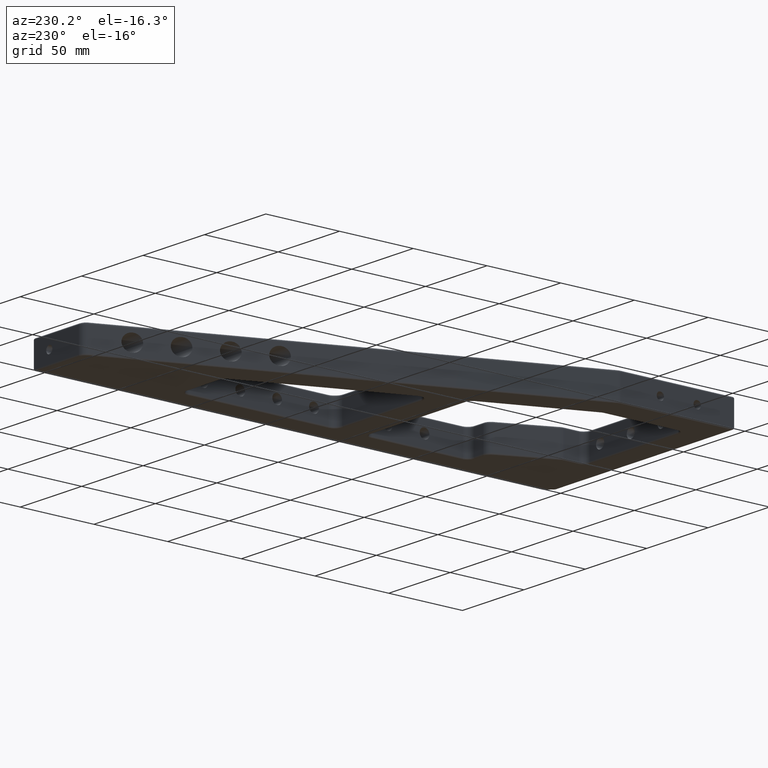
[diagram: clean part render]
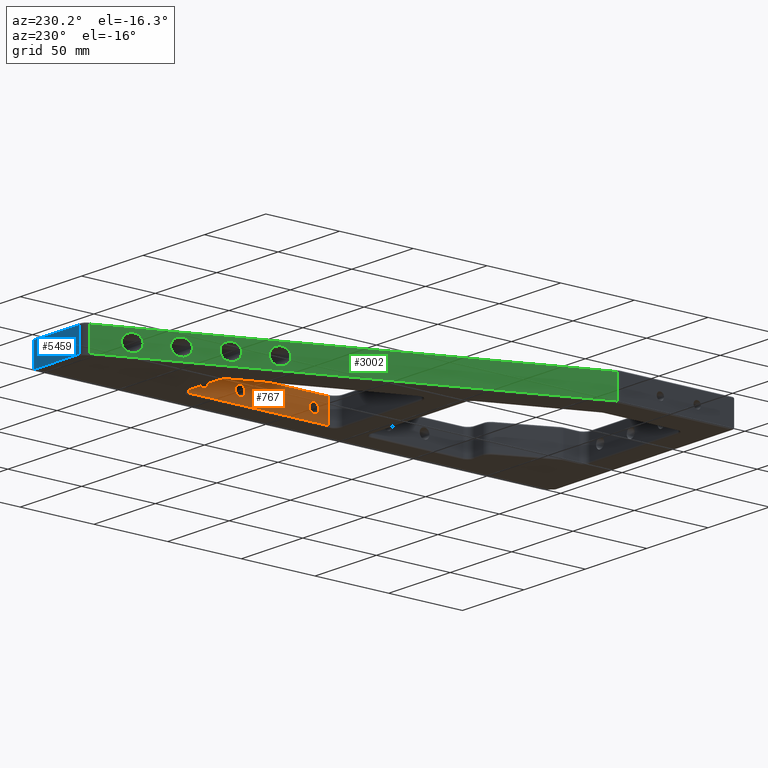
[diagram: same view with three faces highlighted in distinct colors, each labeled with its STEP entity id]
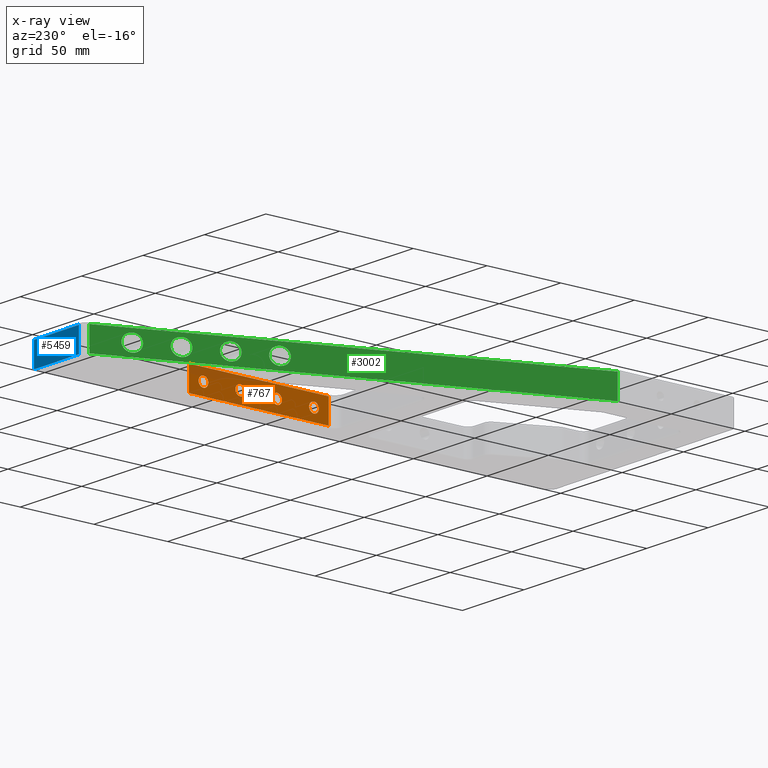
[diagram: x-ray of the same camera — body ghosted, the three highlighted faces saturated]
A machine part, auxiliary view with three faces highlighted in distinct colors.
The next image is the same camera in x-ray (body ghosted, the three faces saturated) — at least one of them is partly hidden behind the body in this view.
Their STEP definitions:

[orange] entity #767 — the highlighted planar face has unit normal (1, 0, 0).
#44 = CIRCLE ( 'NONE', #5566, 3.299999999999997200 ) ;
#69 = EDGE_LOOP ( 'NONE', ( #2251, #3831 ) ) ;
#76 = AXIS2_PLACEMENT_3D ( 'NONE', #1722, #4452, #3989 ) ;
#82 = CARTESIAN_POINT ( 'NONE',  ( 132.0000000000000300, 175.0000000000000000, 8.999999999999976900 ) ) ;
#198 = EDGE_CURVE ( 'NONE', #2735, #634, #1876, .T. ) ;
#224 = LINE ( 'NONE', #5393, #2632 ) ;
#366 = CARTESIAN_POINT ( 'NONE',  ( 132.0000000000000000, 249.9999999999999700, 5.699999999999974400 ) ) ;
#393 = DIRECTION ( 'NONE',  ( 0.0000000000000000000, 1.000000000000000000, 0.0000000000000000000 ) ) ;
#424 = CIRCLE ( 'NONE', #716, 3.299999999999997200 ) ;
#429 = LINE ( 'NONE', #2749, #5150 ) ;
#484 = AXIS2_PLACEMENT_3D ( 'NONE', #4715, #1964, #5164 ) ;
#500 = AXIS2_PLACEMENT_3D ( 'NONE', #4992, #884, #4074 ) ;
#501 = VERTEX_POINT ( 'NONE', #1553 ) ;
#524 = ORIENTED_EDGE ( 'NONE', *, *, #2027, .F. ) ;
#543 = DIRECTION ( 'NONE',  ( 0.0000000000000000000, 1.000000000000000000, 0.0000000000000000000 ) ) ;
#634 = VERTEX_POINT ( 'NONE', #5307 ) ;
#716 = AXIS2_PLACEMENT_3D ( 'NONE', #1559, #4757, #2010 ) ;
#767 = ADVANCED_FACE ( 'NONE', ( #5836, #973, #3379, #4460, #5693 ), #2700, .F. ) ;
#772 = VERTEX_POINT ( 'NONE', #1808 ) ;
#835 = ORIENTED_EDGE ( 'NONE', *, *, #4047, .F. ) ;
#852 = CARTESIAN_POINT ( 'NONE',  ( 132.0000000000000000, 249.9999999999999700, 8.999999999999971600 ) ) ;
#884 = DIRECTION ( 'NONE',  ( 1.000000000000000000, 2.643388153869419300E-016, 0.0000000000000000000 ) ) ;
#919 = EDGE_CURVE ( 'NONE', #501, #4362, #2673, .T. ) ;
#943 = VERTEX_POINT ( 'NONE', #4523 ) ;
#959 = EDGE_CURVE ( 'NONE', #3546, #5161, #1476, .T. ) ;
#973 = FACE_BOUND ( 'NONE', #5211, .T. ) ;
#1017 = VERTEX_POINT ( 'NONE', #5792 ) ;
#1149 = CARTESIAN_POINT ( 'NONE',  ( 132.0000000000000300, 164.9999999999999700, 18.00000000000000000 ) ) ;
#1216 = DIRECTION ( 'NONE',  ( -1.000000000000000000, -2.643388153869419300E-016, -0.0000000000000000000 ) ) ;
#1476 = CIRCLE ( 'NONE', #76, 3.299999999999997200 ) ;
#1506 = CIRCLE ( 'NONE', #3484, 3.299999999999997200 ) ;
#1553 = CARTESIAN_POINT ( 'NONE',  ( 132.0000000000000000, 249.9999999999999700, 12.29999999999996900 ) ) ;
#1559 = CARTESIAN_POINT ( 'NONE',  ( 132.0000000000000300, 199.9999999999999700, 8.999999999999975100 ) ) ;
#1603 = EDGE_CURVE ( 'NONE', #634, #3741, #429, .T. ) ;
#1634 = CARTESIAN_POINT ( 'NONE',  ( 132.0000000000000000, 224.9999999999999700, 12.29999999999997100 ) ) ;
#1642 = EDGE_CURVE ( 'NONE', #4362, #501, #3334, .T. ) ;
#1722 = CARTESIAN_POINT ( 'NONE',  ( 132.0000000000000000, 224.9999999999999700, 8.999999999999973400 ) ) ;
#1739 = DIRECTION ( 'NONE',  ( 2.643388153869419300E-016, -1.000000000000000000, -0.0000000000000000000 ) ) ;
#1765 = DIRECTION ( 'NONE',  ( -1.000000000000000000, -2.643388153869419300E-016, -0.0000000000000000000 ) ) ;
#1808 = CARTESIAN_POINT ( 'NONE',  ( 132.0000000000000300, 199.9999999999999700, 12.29999999999997200 ) ) ;
#1876 = LINE ( 'NONE', #1149, #5098 ) ;
#1964 = DIRECTION ( 'NONE',  ( -1.000000000000000000, -2.643388153869419300E-016, -0.0000000000000000000 ) ) ;
#2010 = DIRECTION ( 'NONE',  ( 0.0000000000000000000, 1.000000000000000000, 0.0000000000000000000 ) ) ;
#2027 = EDGE_CURVE ( 'NONE', #1017, #772, #424, .T. ) ;
#2184 = CIRCLE ( 'NONE', #3130, 3.299999999999997200 ) ;
#2251 = ORIENTED_EDGE ( 'NONE', *, *, #919, .F. ) ;
#2327 = DIRECTION ( 'NONE',  ( -1.000000000000000000, -2.643388153869419300E-016, -0.0000000000000000000 ) ) ;
#2360 = DIRECTION ( 'NONE',  ( 0.0000000000000000000, -0.0000000000000000000, -1.000000000000000000 ) ) ;
#2481 = CARTESIAN_POINT ( 'NONE',  ( 132.0000000000000000, 260.0000000000000000, 1.000000000000000000 ) ) ;
#2486 = EDGE_LOOP ( 'NONE', ( #835, #524 ) ) ;
#2632 = VECTOR ( 'NONE', #1739, 1000.000000000000000 ) ;
#2637 = CIRCLE ( 'NONE', #484, 3.299999999999997200 ) ;
#2639 = EDGE_CURVE ( 'NONE', #943, #5778, #2184, .T. ) ;
#2673 = CIRCLE ( 'NONE', #4784, 3.299999999999997200 ) ;
#2700 = PLANE ( 'NONE',  #500 ) ;
#2718 = CARTESIAN_POINT ( 'NONE',  ( 132.0000000000000000, 260.0000000000000000, 16.99999999999999600 ) ) ;
#2728 = ORIENTED_EDGE ( 'NONE', *, *, #2639, .F. ) ;
#2735 = VERTEX_POINT ( 'NONE', #3782 ) ;
#2749 = CARTESIAN_POINT ( 'NONE',  ( 132.0000000000000000, 260.0000000000000000, 16.99999999999999600 ) ) ;
#2755 = ORIENTED_EDGE ( 'NONE', *, *, #959, .F. ) ;
#2811 = CARTESIAN_POINT ( 'NONE',  ( 132.0000000000000000, 260.0000000000000000, 0.0000000000000000000 ) ) ;
#2885 = VECTOR ( 'NONE', #2360, 1000.000000000000000 ) ;
#2930 = EDGE_CURVE ( 'NONE', #5161, #3546, #44, .T. ) ;
#2933 = ORIENTED_EDGE ( 'NONE', *, *, #4868, .F. ) ;
#3032 = EDGE_LOOP ( 'NONE', ( #4642, #2755 ) ) ;
#3130 = AXIS2_PLACEMENT_3D ( 'NONE', #82, #3260, #543 ) ;
#3260 = DIRECTION ( 'NONE',  ( -1.000000000000000000, -2.643388153869419300E-016, -0.0000000000000000000 ) ) ;
#3273 = CARTESIAN_POINT ( 'NONE',  ( 132.0000000000000000, 224.9999999999999700, 5.699999999999976200 ) ) ;
#3276 = EDGE_CURVE ( 'NONE', #3741, #5111, #5474, .T. ) ;
#3286 = ORIENTED_EDGE ( 'NONE', *, *, #4384, .T. ) ;
#3334 = CIRCLE ( 'NONE', #4942, 3.299999999999997200 ) ;
#3379 = FACE_OUTER_BOUND ( 'NONE', #4851, .T. ) ;
#3484 = AXIS2_PLACEMENT_3D ( 'NONE', #5088, #2327, #5538 ) ;
#3546 = VERTEX_POINT ( 'NONE', #3273 ) ;
#3566 = DIRECTION ( 'NONE',  ( -1.000000000000000000, -2.643388153869419300E-016, -0.0000000000000000000 ) ) ;
#3741 = VERTEX_POINT ( 'NONE', #2718 ) ;
#3782 = CARTESIAN_POINT ( 'NONE',  ( 132.0000000000000300, 164.9999999999999700, 1.000000000000000900 ) ) ;
#3831 = ORIENTED_EDGE ( 'NONE', *, *, #1642, .F. ) ;
#3929 = CARTESIAN_POINT ( 'NONE',  ( 132.0000000000000000, 224.9999999999999700, 8.999999999999973400 ) ) ;
#3989 = DIRECTION ( 'NONE',  ( 0.0000000000000000000, 1.000000000000000000, 0.0000000000000000000 ) ) ;
#4047 = EDGE_CURVE ( 'NONE', #772, #1017, #2637, .T. ) ;
#4073 = DIRECTION ( 'NONE',  ( -2.643388153869419300E-016, 1.000000000000000000, -0.0000000000000000000 ) ) ;
#4074 = DIRECTION ( 'NONE',  ( -2.643388153869419300E-016, 1.000000000000000000, 0.0000000000000000000 ) ) ;
#4362 = VERTEX_POINT ( 'NONE', #366 ) ;
#4384 = EDGE_CURVE ( 'NONE', #5111, #2735, #224, .T. ) ;
#4394 = DIRECTION ( 'NONE',  ( 0.0000000000000000000, 1.000000000000000000, 0.0000000000000000000 ) ) ;
#4452 = DIRECTION ( 'NONE',  ( -1.000000000000000000, -2.643388153869419300E-016, -0.0000000000000000000 ) ) ;
#4460 = FACE_BOUND ( 'NONE', #2486, .T. ) ;
#4523 = CARTESIAN_POINT ( 'NONE',  ( 132.0000000000000300, 175.0000000000000000, 5.699999999999979700 ) ) ;
#4642 = ORIENTED_EDGE ( 'NONE', *, *, #2930, .F. ) ;
#4671 = CARTESIAN_POINT ( 'NONE',  ( 132.0000000000000300, 175.0000000000000000, 12.29999999999997400 ) ) ;
#4715 = CARTESIAN_POINT ( 'NONE',  ( 132.0000000000000300, 199.9999999999999700, 8.999999999999975100 ) ) ;
#4757 = DIRECTION ( 'NONE',  ( -1.000000000000000000, -2.643388153869419300E-016, -0.0000000000000000000 ) ) ;
#4784 = AXIS2_PLACEMENT_3D ( 'NONE', #852, #3566, #393 ) ;
#4851 = EDGE_LOOP ( 'NONE', ( #5816, #3286, #5065, #5177 ) ) ;
#4868 = EDGE_CURVE ( 'NONE', #5778, #943, #1506, .T. ) ;
#4942 = AXIS2_PLACEMENT_3D ( 'NONE', #4969, #1765, #5425 ) ;
#4969 = CARTESIAN_POINT ( 'NONE',  ( 132.0000000000000000, 249.9999999999999700, 8.999999999999971600 ) ) ;
#4992 = CARTESIAN_POINT ( 'NONE',  ( 132.0000000000000000, 265.0000000000000000, 0.0000000000000000000 ) ) ;
#5065 = ORIENTED_EDGE ( 'NONE', *, *, #198, .T. ) ;
#5088 = CARTESIAN_POINT ( 'NONE',  ( 132.0000000000000300, 175.0000000000000000, 8.999999999999976900 ) ) ;
#5098 = VECTOR ( 'NONE', #5264, 1000.000000000000000 ) ;
#5111 = VERTEX_POINT ( 'NONE', #2481 ) ;
#5150 = VECTOR ( 'NONE', #4073, 1000.000000000000000 ) ;
#5161 = VERTEX_POINT ( 'NONE', #1634 ) ;
#5164 = DIRECTION ( 'NONE',  ( 0.0000000000000000000, 1.000000000000000000, 0.0000000000000000000 ) ) ;
#5177 = ORIENTED_EDGE ( 'NONE', *, *, #1603, .T. ) ;
#5211 = EDGE_LOOP ( 'NONE', ( #2933, #2728 ) ) ;
#5264 = DIRECTION ( 'NONE',  ( -0.0000000000000000000, 0.0000000000000000000, 1.000000000000000000 ) ) ;
#5307 = CARTESIAN_POINT ( 'NONE',  ( 132.0000000000000300, 164.9999999999999700, 16.99999999999999600 ) ) ;
#5393 = CARTESIAN_POINT ( 'NONE',  ( 132.0000000000000000, 265.0000000000000000, 1.000000000000000000 ) ) ;
#5425 = DIRECTION ( 'NONE',  ( 0.0000000000000000000, 1.000000000000000000, 0.0000000000000000000 ) ) ;
#5474 = LINE ( 'NONE', #2811, #2885 ) ;
#5538 = DIRECTION ( 'NONE',  ( 0.0000000000000000000, 1.000000000000000000, 0.0000000000000000000 ) ) ;
#5566 = AXIS2_PLACEMENT_3D ( 'NONE', #3929, #1216, #4394 ) ;
#5693 = FACE_BOUND ( 'NONE', #69, .T. ) ;
#5778 = VERTEX_POINT ( 'NONE', #4671 ) ;
#5792 = CARTESIAN_POINT ( 'NONE',  ( 132.0000000000000300, 199.9999999999999700, 5.699999999999978000 ) ) ;
#5816 = ORIENTED_EDGE ( 'NONE', *, *, #3276, .T. ) ;
#5836 = FACE_BOUND ( 'NONE', #3032, .T. ) ;

[blue] entity #5459 — the highlighted planar face has unit normal (0, -1, 0).
#98 = AXIS2_PLACEMENT_3D ( 'NONE', #178, #3349, #632 ) ;
#117 = DIRECTION ( 'NONE',  ( 0.0000000000000000000, 0.0000000000000000000, 1.000000000000000000 ) ) ;
#178 = CARTESIAN_POINT ( 'NONE',  ( 137.4999999999999700, 350.0000000000000000, 8.999999999999996400 ) ) ;
#446 = EDGE_CURVE ( 'NONE', #945, #4003, #976, .T. ) ;
#452 = ORIENTED_EDGE ( 'NONE', *, *, #1429, .T. ) ;
#491 = ORIENTED_EDGE ( 'NONE', *, *, #4439, .T. ) ;
#502 = CARTESIAN_POINT ( 'NONE',  ( 150.0000000000000000, 350.0000000000000000, 16.99999999999999600 ) ) ;
#621 = CIRCLE ( 'NONE', #3543, 2.500000000000002200 ) ;
#632 = DIRECTION ( 'NONE',  ( 0.0000000000000000000, 0.0000000000000000000, 1.000000000000000000 ) ) ;
#881 = DIRECTION ( 'NONE',  ( -1.000000000000000000, 0.0000000000000000000, 0.0000000000000000000 ) ) ;
#945 = VERTEX_POINT ( 'NONE', #3094 ) ;
#976 = LINE ( 'NONE', #502, #5556 ) ;
#1235 = CARTESIAN_POINT ( 'NONE',  ( 150.0000000000000000, 350.0000000000000000, 18.00000000000000000 ) ) ;
#1429 = EDGE_CURVE ( 'NONE', #4003, #1995, #2393, .T. ) ;
#1455 = ORIENTED_EDGE ( 'NONE', *, *, #5256, .T. ) ;
#1562 = ORIENTED_EDGE ( 'NONE', *, *, #2524, .F. ) ;
#1617 = FACE_BOUND ( 'NONE', #1951, .T. ) ;
#1686 = DIRECTION ( 'NONE',  ( 0.0000000000000000000, -1.000000000000000000, 0.0000000000000000000 ) ) ;
#1743 = CARTESIAN_POINT ( 'NONE',  ( 150.0000000000000000, 350.0000000000000000, 18.00000000000000000 ) ) ;
#1792 = CARTESIAN_POINT ( 'NONE',  ( 137.4999999999999700, 350.0000000000000000, 6.499999999999993800 ) ) ;
#1854 = CARTESIAN_POINT ( 'NONE',  ( 150.0000000000000000, 350.0000000000000000, 1.000000000000000900 ) ) ;
#1951 = EDGE_LOOP ( 'NONE', ( #3571, #1562 ) ) ;
#1991 = DIRECTION ( 'NONE',  ( 1.000000000000000000, -0.0000000000000000000, -0.0000000000000000000 ) ) ;
#1995 = VERTEX_POINT ( 'NONE', #1854 ) ;
#2305 = VERTEX_POINT ( 'NONE', #4503 ) ;
#2393 = LINE ( 'NONE', #1743, #4689 ) ;
#2524 = EDGE_CURVE ( 'NONE', #5635, #4010, #621, .T. ) ;
#2579 = PLANE ( 'NONE',  #3341 ) ;
#2821 = FACE_OUTER_BOUND ( 'NONE', #3458, .T. ) ;
#2837 = DIRECTION ( 'NONE',  ( -0.0000000000000000000, 1.000000000000000000, -0.0000000000000000000 ) ) ;
#3075 = DIRECTION ( 'NONE',  ( -0.0000000000000000000, -0.0000000000000000000, 1.000000000000000000 ) ) ;
#3094 = CARTESIAN_POINT ( 'NONE',  ( 113.3725425842121100, 350.0000000000000000, 16.99999999999999600 ) ) ;
#3254 = VECTOR ( 'NONE', #3075, 1000.000000000000000 ) ;
#3341 = AXIS2_PLACEMENT_3D ( 'NONE', #1235, #1686, #4898 ) ;
#3349 = DIRECTION ( 'NONE',  ( -0.0000000000000000000, 1.000000000000000000, -0.0000000000000000000 ) ) ;
#3421 = VECTOR ( 'NONE', #881, 1000.000000000000000 ) ;
#3458 = EDGE_LOOP ( 'NONE', ( #452, #491, #1455, #4315 ) ) ;
#3523 = CARTESIAN_POINT ( 'NONE',  ( 113.3725425842121100, 350.0000000000000000, 18.00000000000000000 ) ) ;
#3543 = AXIS2_PLACEMENT_3D ( 'NONE', #5586, #2837, #117 ) ;
#3571 = ORIENTED_EDGE ( 'NONE', *, *, #3634, .F. ) ;
#3603 = CARTESIAN_POINT ( 'NONE',  ( 150.0000000000000000, 350.0000000000000000, 1.000000000000000900 ) ) ;
#3634 = EDGE_CURVE ( 'NONE', #4010, #5635, #5824, .T. ) ;
#4003 = VERTEX_POINT ( 'NONE', #4654 ) ;
#4008 = DIRECTION ( 'NONE',  ( -0.0000000000000000000, -0.0000000000000000000, -1.000000000000000000 ) ) ;
#4010 = VERTEX_POINT ( 'NONE', #4199 ) ;
#4199 = CARTESIAN_POINT ( 'NONE',  ( 137.4999999999999700, 350.0000000000000000, 11.49999999999999800 ) ) ;
#4315 = ORIENTED_EDGE ( 'NONE', *, *, #446, .T. ) ;
#4439 = EDGE_CURVE ( 'NONE', #1995, #2305, #5874, .T. ) ;
#4475 = LINE ( 'NONE', #3523, #3254 ) ;
#4503 = CARTESIAN_POINT ( 'NONE',  ( 113.3725425842121100, 350.0000000000000000, 1.000000000000000900 ) ) ;
#4654 = CARTESIAN_POINT ( 'NONE',  ( 150.0000000000000000, 350.0000000000000000, 16.99999999999999600 ) ) ;
#4689 = VECTOR ( 'NONE', #4008, 1000.000000000000000 ) ;
#4898 = DIRECTION ( 'NONE',  ( 0.0000000000000000000, -0.0000000000000000000, -1.000000000000000000 ) ) ;
#5256 = EDGE_CURVE ( 'NONE', #2305, #945, #4475, .T. ) ;
#5459 = ADVANCED_FACE ( 'NONE', ( #1617, #2821 ), #2579, .F. ) ;
#5556 = VECTOR ( 'NONE', #1991, 1000.000000000000000 ) ;
#5586 = CARTESIAN_POINT ( 'NONE',  ( 137.4999999999999700, 350.0000000000000000, 8.999999999999996400 ) ) ;
#5635 = VERTEX_POINT ( 'NONE', #1792 ) ;
#5824 = CIRCLE ( 'NONE', #98, 2.500000000000002200 ) ;
#5874 = LINE ( 'NONE', #3603, #3421 ) ;

[green] entity #3002 — the highlighted planar face has unit normal (0.9272, -0.3746, 0).
#18 = CARTESIAN_POINT ( 'NONE',  ( 81.92017730445680000, 280.4999999999999400, 8.999999999999966200 ) ) ;
#75 = LINE ( 'NONE', #3599, #1142 ) ;
#110 =( BOUNDED_CURVE ( )  B_SPLINE_CURVE ( 3, ( #476, #1374, #2287, #3651 ),
 .UNSPECIFIED., .F., .F. ) 
 B_SPLINE_CURVE_WITH_KNOTS ( ( 4, 4 ),
 ( 3.141592653589793100, 6.283185307179586200 ),
 .UNSPECIFIED. ) 
 CURVE ( )  GEOMETRIC_REPRESENTATION_ITEM ( )  RATIONAL_B_SPLINE_CURVE ( ( 1.000000000000000000, 0.3333333333333333700, 0.3333333333333333700, 1.000000000000000000 ) ) 
 REPRESENTATION_ITEM ( '' )  );
#177 = EDGE_LOOP ( 'NONE', ( #2867, #376 ) ) ;
#211 = ORIENTED_EDGE ( 'NONE', *, *, #537, .T. ) ;
#313 = VERTEX_POINT ( 'NONE', #18 ) ;
#323 = EDGE_CURVE ( 'NONE', #5859, #1619, #3900, .T. ) ;
#376 = ORIENTED_EDGE ( 'NONE', *, *, #2872, .T. ) ;
#427 = DIRECTION ( 'NONE',  ( 0.3746065934159093500, 0.9271838545667884200, -0.0000000000000000000 ) ) ;
#476 = CARTESIAN_POINT ( 'NONE',  ( 67.37523317439128300, 244.4999999999999700, 8.999999999999971600 ) ) ;
#537 = EDGE_CURVE ( 'NONE', #2713, #2861, #4037, .T. ) ;
#550 =( BOUNDED_CURVE ( )  B_SPLINE_CURVE ( 3, ( #2730, #4581, #4989, #3327 ),
 .UNSPECIFIED., .F., .F. ) 
 B_SPLINE_CURVE_WITH_KNOTS ( ( 4, 4 ),
 ( 0.0000000000000000000, 3.141592653589793100 ),
 .UNSPECIFIED. ) 
 CURVE ( )  GEOMETRIC_REPRESENTATION_ITEM ( )  RATIONAL_B_SPLINE_CURVE ( ( 1.000000000000000000, 0.3333333333333333700, 0.3333333333333333700, 1.000000000000000000 ) ) 
 REPRESENTATION_ITEM ( '' )  );
#701 = EDGE_LOOP ( 'NONE', ( #1208, #3771 ) ) ;
#709 = CARTESIAN_POINT ( 'NONE',  ( 97.67720011202781900, 319.4999999999999400, 8.999999999999962700 ) ) ;
#742 = CARTESIAN_POINT ( 'NONE',  ( 87.57654446614897400, 294.4999999999999400, -2.000000000000036400 ) ) ;
#808 = EDGE_CURVE ( 'NONE', #5343, #3087, #110, .T. ) ;
#814 = EDGE_CURVE ( 'NONE', #313, #5565, #1166, .T. ) ;
#902 = VERTEX_POINT ( 'NONE', #1790 ) ;
#1112 = FACE_BOUND ( 'NONE', #4669, .T. ) ;
#1142 = VECTOR ( 'NONE', #427, 1000.000000000000100 ) ;
#1166 =( BOUNDED_CURVE ( )  B_SPLINE_CURVE ( 3, ( #1852, #5035, #5507, #2751 ),
 .UNSPECIFIED., .F., .F. ) 
 B_SPLINE_CURVE_WITH_KNOTS ( ( 4, 4 ),
 ( 0.0000000000000000000, 3.141592653589793100 ),
 .UNSPECIFIED. ) 
 CURVE ( )  GEOMETRIC_REPRESENTATION_ITEM ( )  RATIONAL_B_SPLINE_CURVE ( ( 1.000000000000000000, 0.3333333333333333700, 0.3333333333333333700, 1.000000000000000000 ) ) 
 REPRESENTATION_ITEM ( '' )  );
#1167 = CARTESIAN_POINT ( 'NONE',  ( 0.3640807271660384500, 78.64157754559613500, 16.99999999999999600 ) ) ;
#1178 = CARTESIAN_POINT ( 'NONE',  ( 97.67720011202781900, 319.4999999999999400, -2.000000000000040000 ) ) ;
#1208 = ORIENTED_EDGE ( 'NONE', *, *, #323, .T. ) ;
#1240 = ORIENTED_EDGE ( 'NONE', *, *, #1329, .T. ) ;
#1279 = CARTESIAN_POINT ( 'NONE',  ( 0.3640807271660384500, 78.64157754559613500, 18.00000000000000000 ) ) ;
#1329 = EDGE_CURVE ( 'NONE', #3087, #5343, #550, .T. ) ;
#1374 = CARTESIAN_POINT ( 'NONE',  ( 67.37523317439128300, 244.5000000000000300, -2.000000000000047100 ) ) ;
#1416 = CARTESIAN_POINT ( 'NONE',  ( 102.1214885962145200, 330.4999999999999400, 8.999999999999962700 ) ) ;
#1619 = VERTEX_POINT ( 'NONE', #4117 ) ;
#1671 = CARTESIAN_POINT ( 'NONE',  ( 87.57654446614897400, 294.4999999999999400, 8.999999999999962700 ) ) ;
#1716 = EDGE_CURVE ( 'NONE', #5565, #313, #4162, .T. ) ;
#1726 = DIRECTION ( 'NONE',  ( -0.0000000000000000000, -0.0000000000000000000, 1.000000000000000000 ) ) ;
#1790 = CARTESIAN_POINT ( 'NONE',  ( 0.3640807271660384500, 78.64157754559613500, 1.000000000000000900 ) ) ;
#1852 = CARTESIAN_POINT ( 'NONE',  ( 81.92017730445680000, 280.4999999999999400, 8.999999999999966200 ) ) ;
#1882 = EDGE_LOOP ( 'NONE', ( #211, #3796, #5069, #2504 ) ) ;
#1949 = EDGE_CURVE ( 'NONE', #2861, #902, #3122, .T. ) ;
#2040 = CARTESIAN_POINT ( 'NONE',  ( 108.7366233113781800, 346.8730329670795000, 18.00000000000000000 ) ) ;
#2083 = CARTESIAN_POINT ( 'NONE',  ( 102.1214885962145200, 330.4999999999999400, 8.999999999999962700 ) ) ;
#2165 = CARTESIAN_POINT ( 'NONE',  ( 77.47588882027011400, 269.4999999999998900, 8.999999999999966200 ) ) ;
#2182 = DIRECTION ( 'NONE',  ( 0.9271838545667885300, -0.3746065934159094100, 0.0000000000000000000 ) ) ;
#2236 = CARTESIAN_POINT ( 'NONE',  ( 87.57654446614897400, 294.4999999999999400, 19.99999999999996100 ) ) ;
#2272 = ORIENTED_EDGE ( 'NONE', *, *, #1716, .T. ) ;
#2287 = CARTESIAN_POINT ( 'NONE',  ( 71.81952165857799700, 255.5000000000000000, -2.000000000000047100 ) ) ;
#2429 = EDGE_CURVE ( 'NONE', #5171, #5894, #2471, .T. ) ;
#2471 =( BOUNDED_CURVE ( )  B_SPLINE_CURVE ( 3, ( #1416, #4144, #3676, #4612 ),
 .UNSPECIFIED., .F., .F. ) 
 B_SPLINE_CURVE_WITH_KNOTS ( ( 4, 4 ),
 ( 0.0000000000000000000, 3.141592653589793100 ),
 .UNSPECIFIED. ) 
 CURVE ( )  GEOMETRIC_REPRESENTATION_ITEM ( )  RATIONAL_B_SPLINE_CURVE ( ( 1.000000000000000000, 0.3333333333333333700, 0.3333333333333333700, 1.000000000000000000 ) ) 
 REPRESENTATION_ITEM ( '' )  );
#2498 = DIRECTION ( 'NONE',  ( 0.0000000000000000000, 0.0000000000000000000, -1.000000000000000000 ) ) ;
#2504 = ORIENTED_EDGE ( 'NONE', *, *, #4789, .T. ) ;
#2516 = CARTESIAN_POINT ( 'NONE',  ( 77.47588882027011400, 269.4999999999998900, -2.000000000000036400 ) ) ;
#2610 = CARTESIAN_POINT ( 'NONE',  ( 109.9999999999999900, 350.0000000000000000, 1.000000000000000900 ) ) ;
#2629 = ORIENTED_EDGE ( 'NONE', *, *, #814, .T. ) ;
#2713 = VERTEX_POINT ( 'NONE', #2841 ) ;
#2730 = CARTESIAN_POINT ( 'NONE',  ( 71.81952165857798300, 255.4999999999999400, 8.999999999999971600 ) ) ;
#2751 = CARTESIAN_POINT ( 'NONE',  ( 77.47588882027011400, 269.4999999999998900, 8.999999999999966200 ) ) ;
#2820 = VECTOR ( 'NONE', #2498, 1000.000000000000000 ) ;
#2841 = CARTESIAN_POINT ( 'NONE',  ( 108.7366233113781800, 346.8730329670795000, 16.99999999999999600 ) ) ;
#2861 = VERTEX_POINT ( 'NONE', #5726 ) ;
#2867 = ORIENTED_EDGE ( 'NONE', *, *, #2429, .T. ) ;
#2872 = EDGE_CURVE ( 'NONE', #5894, #5171, #5676, .T. ) ;
#2975 = CARTESIAN_POINT ( 'NONE',  ( 81.92017730445680000, 280.4999999999999400, 8.999999999999966200 ) ) ;
#2982 = AXIS2_PLACEMENT_3D ( 'NONE', #3990, #2182, #5385 ) ;
#3002 = ADVANCED_FACE ( 'NONE', ( #4182, #4323, #1112, #5550, #3242 ), #4936, .F. ) ;
#3034 = CARTESIAN_POINT ( 'NONE',  ( 92.02083295033567400, 305.4999999999999400, 8.999999999999962700 ) ) ;
#3079 = CARTESIAN_POINT ( 'NONE',  ( 81.92017730445678600, 280.4999999999999400, -2.000000000000036400 ) ) ;
#3087 = VERTEX_POINT ( 'NONE', #5912 ) ;
#3122 = LINE ( 'NONE', #2610, #4340 ) ;
#3139 = CARTESIAN_POINT ( 'NONE',  ( 97.67720011202781900, 319.4999999999999400, 8.999999999999962700 ) ) ;
#3242 = FACE_OUTER_BOUND ( 'NONE', #1882, .T. ) ;
#3300 = ORIENTED_EDGE ( 'NONE', *, *, #808, .T. ) ;
#3327 = CARTESIAN_POINT ( 'NONE',  ( 67.37523317439128300, 244.4999999999999700, 8.999999999999971600 ) ) ;
#3353 = EDGE_CURVE ( 'NONE', #902, #4223, #5689, .T. ) ;
#3394 = CARTESIAN_POINT ( 'NONE',  ( 67.37523317439128300, 244.4999999999999700, 8.999999999999971600 ) ) ;
#3599 = CARTESIAN_POINT ( 'NONE',  ( 108.7366233113782000, 346.8730329670795500, 16.99999999999999600 ) ) ;
#3621 = CARTESIAN_POINT ( 'NONE',  ( 92.02083295033567400, 305.4999999999999400, 8.999999999999962700 ) ) ;
#3651 = CARTESIAN_POINT ( 'NONE',  ( 71.81952165857798300, 255.4999999999999400, 8.999999999999971600 ) ) ;
#3667 = VECTOR ( 'NONE', #1726, 1000.000000000000000 ) ;
#3676 = CARTESIAN_POINT ( 'NONE',  ( 97.67720011202781900, 319.4999999999999400, 19.99999999999996400 ) ) ;
#3771 = ORIENTED_EDGE ( 'NONE', *, *, #5451, .T. ) ;
#3796 = ORIENTED_EDGE ( 'NONE', *, *, #1949, .T. ) ;
#3900 =( BOUNDED_CURVE ( )  B_SPLINE_CURVE ( 3, ( #3621, #4530, #2236, #4082 ),
 .UNSPECIFIED., .F., .T. ) 
 B_SPLINE_CURVE_WITH_KNOTS ( ( 4, 4 ),
 ( 0.0000000000000000000, 3.141592653589793100 ),
 .UNSPECIFIED. ) 
 CURVE ( )  GEOMETRIC_REPRESENTATION_ITEM ( )  RATIONAL_B_SPLINE_CURVE ( ( 1.000000000000000000, 0.3333333333333333700, 0.3333333333333333700, 1.000000000000000000 ) ) 
 REPRESENTATION_ITEM ( '' )  );
#3990 = CARTESIAN_POINT ( 'NONE',  ( 109.9999999999999900, 350.0000000000000000, 18.00000000000000000 ) ) ;
#4037 = LINE ( 'NONE', #2040, #2820 ) ;
#4082 = CARTESIAN_POINT ( 'NONE',  ( 87.57654446614897400, 294.4999999999999400, 8.999999999999962700 ) ) ;
#4117 = CARTESIAN_POINT ( 'NONE',  ( 87.57654446614897400, 294.4999999999999400, 8.999999999999962700 ) ) ;
#4144 = CARTESIAN_POINT ( 'NONE',  ( 102.1214885962144900, 330.4999999999999400, 19.99999999999996400 ) ) ;
#4162 =( BOUNDED_CURVE ( )  B_SPLINE_CURVE ( 3, ( #4834, #2516, #3079, #2975 ),
 .UNSPECIFIED., .F., .F. ) 
 B_SPLINE_CURVE_WITH_KNOTS ( ( 4, 4 ),
 ( 3.141592653589793100, 6.283185307179586200 ),
 .UNSPECIFIED. ) 
 CURVE ( )  GEOMETRIC_REPRESENTATION_ITEM ( )  RATIONAL_B_SPLINE_CURVE ( ( 1.000000000000000000, 0.3333333333333333700, 0.3333333333333333700, 1.000000000000000000 ) ) 
 REPRESENTATION_ITEM ( '' )  );
#4182 = FACE_BOUND ( 'NONE', #701, .T. ) ;
#4196 =( BOUNDED_CURVE ( )  B_SPLINE_CURVE ( 3, ( #1671, #742, #5794, #3034 ),
 .UNSPECIFIED., .F., .F. ) 
 B_SPLINE_CURVE_WITH_KNOTS ( ( 4, 4 ),
 ( 3.141592653589793100, 6.283185307179586200 ),
 .UNSPECIFIED. ) 
 CURVE ( )  GEOMETRIC_REPRESENTATION_ITEM ( )  RATIONAL_B_SPLINE_CURVE ( ( 1.000000000000000000, 0.3333333333333333700, 0.3333333333333333700, 1.000000000000000000 ) ) 
 REPRESENTATION_ITEM ( '' )  );
#4223 = VERTEX_POINT ( 'NONE', #1167 ) ;
#4277 = CARTESIAN_POINT ( 'NONE',  ( 92.02083295033567400, 305.4999999999999400, 8.999999999999962700 ) ) ;
#4309 = DIRECTION ( 'NONE',  ( -0.3746065934159093500, -0.9271838545667884200, 0.0000000000000000000 ) ) ;
#4323 = FACE_BOUND ( 'NONE', #4955, .T. ) ;
#4340 = VECTOR ( 'NONE', #4309, 1000.000000000000100 ) ;
#4357 = CARTESIAN_POINT ( 'NONE',  ( 102.1214885962145200, 330.4999999999999400, 8.999999999999962700 ) ) ;
#4530 = CARTESIAN_POINT ( 'NONE',  ( 92.02083295033565900, 305.4999999999998900, 19.99999999999996100 ) ) ;
#4581 = CARTESIAN_POINT ( 'NONE',  ( 71.81952165857799700, 255.5000000000000000, 19.99999999999998900 ) ) ;
#4612 = CARTESIAN_POINT ( 'NONE',  ( 97.67720011202781900, 319.4999999999999400, 8.999999999999962700 ) ) ;
#4669 = EDGE_LOOP ( 'NONE', ( #1240, #3300 ) ) ;
#4789 = EDGE_CURVE ( 'NONE', #4223, #2713, #75, .T. ) ;
#4834 = CARTESIAN_POINT ( 'NONE',  ( 77.47588882027011400, 269.4999999999998900, 8.999999999999966200 ) ) ;
#4836 = CARTESIAN_POINT ( 'NONE',  ( 102.1214885962144900, 330.4999999999999400, -2.000000000000040000 ) ) ;
#4936 = PLANE ( 'NONE',  #2982 ) ;
#4955 = EDGE_LOOP ( 'NONE', ( #2629, #2272 ) ) ;
#4989 = CARTESIAN_POINT ( 'NONE',  ( 67.37523317439128300, 244.5000000000000300, 19.99999999999998900 ) ) ;
#5035 = CARTESIAN_POINT ( 'NONE',  ( 81.92017730445678600, 280.4999999999999400, 19.99999999999996800 ) ) ;
#5069 = ORIENTED_EDGE ( 'NONE', *, *, #3353, .T. ) ;
#5171 = VERTEX_POINT ( 'NONE', #4357 ) ;
#5343 = VERTEX_POINT ( 'NONE', #3394 ) ;
#5385 = DIRECTION ( 'NONE',  ( 0.3746065934159093500, 0.9271838545667884200, 0.0000000000000000000 ) ) ;
#5451 = EDGE_CURVE ( 'NONE', #1619, #5859, #4196, .T. ) ;
#5507 = CARTESIAN_POINT ( 'NONE',  ( 77.47588882027011400, 269.4999999999998900, 19.99999999999996800 ) ) ;
#5550 = FACE_BOUND ( 'NONE', #177, .T. ) ;
#5565 = VERTEX_POINT ( 'NONE', #2165 ) ;
#5676 =( BOUNDED_CURVE ( )  B_SPLINE_CURVE ( 3, ( #709, #1178, #4836, #2083 ),
 .UNSPECIFIED., .F., .F. ) 
 B_SPLINE_CURVE_WITH_KNOTS ( ( 4, 4 ),
 ( 3.141592653589793100, 6.283185307179586200 ),
 .UNSPECIFIED. ) 
 CURVE ( )  GEOMETRIC_REPRESENTATION_ITEM ( )  RATIONAL_B_SPLINE_CURVE ( ( 1.000000000000000000, 0.3333333333333333700, 0.3333333333333333700, 1.000000000000000000 ) ) 
 REPRESENTATION_ITEM ( '' )  );
#5689 = LINE ( 'NONE', #1279, #3667 ) ;
#5726 = CARTESIAN_POINT ( 'NONE',  ( 108.7366233113781800, 346.8730329670795000, 1.000000000000000900 ) ) ;
#5794 = CARTESIAN_POINT ( 'NONE',  ( 92.02083295033565900, 305.4999999999998900, -2.000000000000036400 ) ) ;
#5859 = VERTEX_POINT ( 'NONE', #4277 ) ;
#5894 = VERTEX_POINT ( 'NONE', #3139 ) ;
#5912 = CARTESIAN_POINT ( 'NONE',  ( 71.81952165857798300, 255.4999999999999400, 8.999999999999971600 ) ) ;